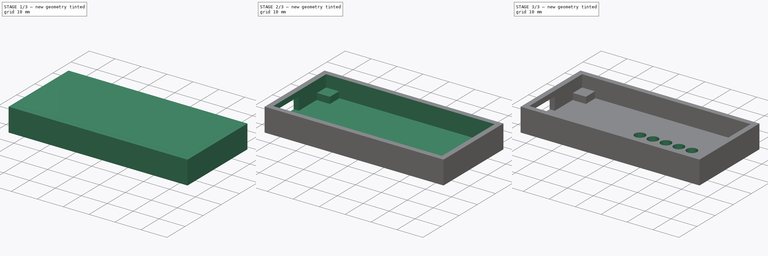
[diagram: build sequence overview — one tinted view per stage of 3, left to right]
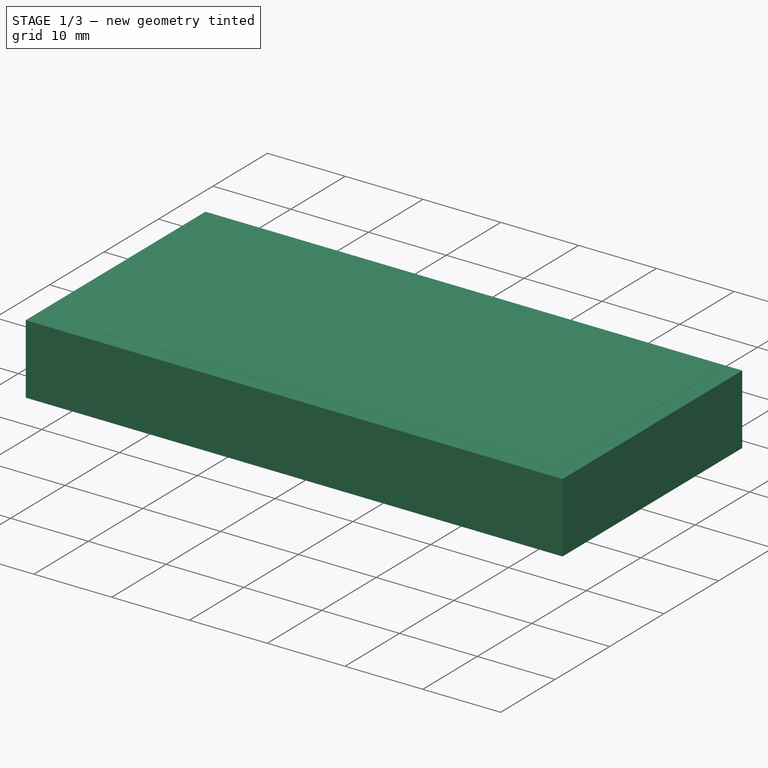
[diagram: stage 1 of 3 — iso view after this stage's code; geometry added in this stage tinted green]
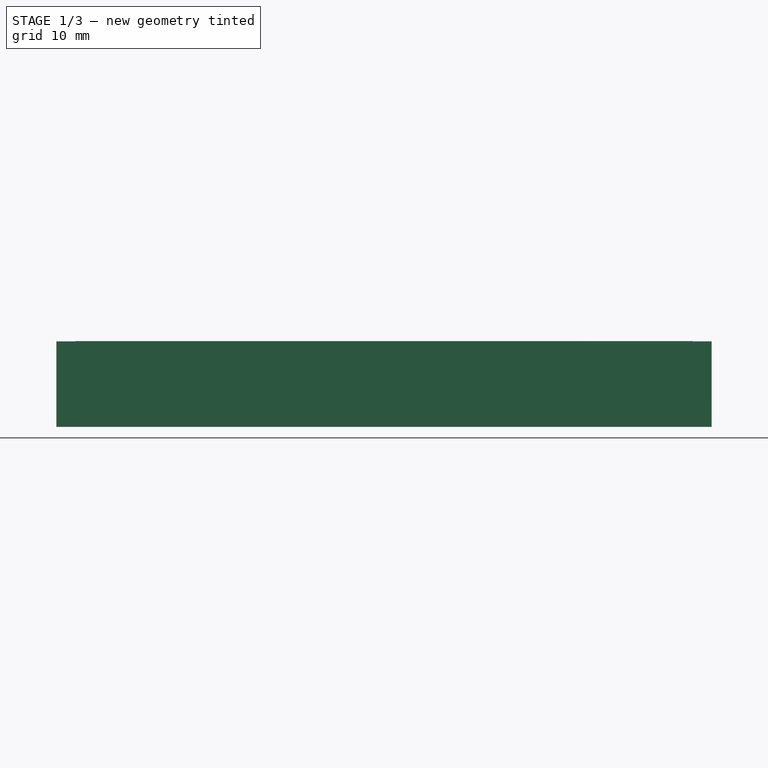
[diagram: stage 1 of 3 — front view after this stage's code; geometry added in this stage tinted green]
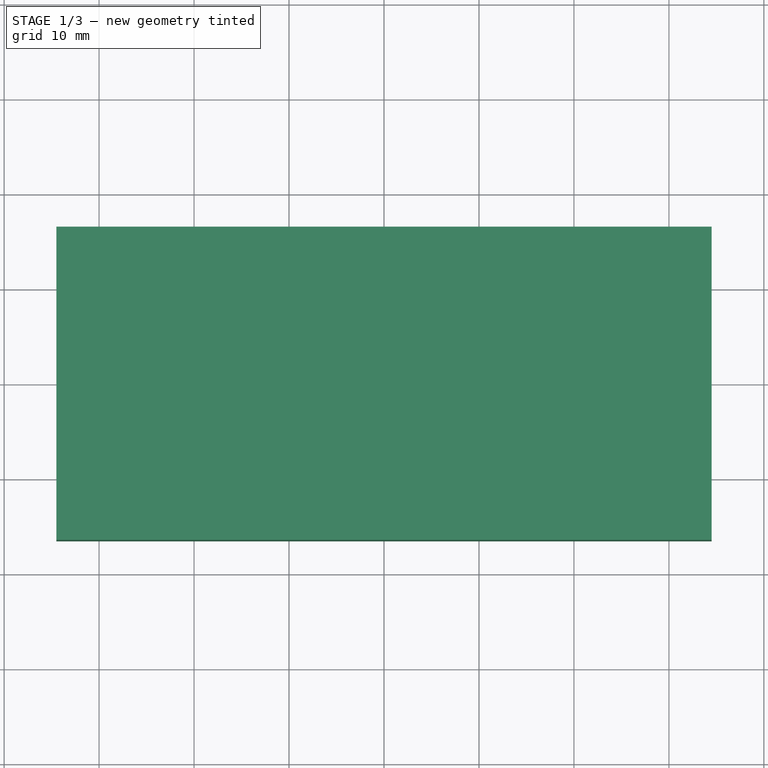
[diagram: stage 1 of 3 — top view after this stage's code; geometry added in this stage tinted green]
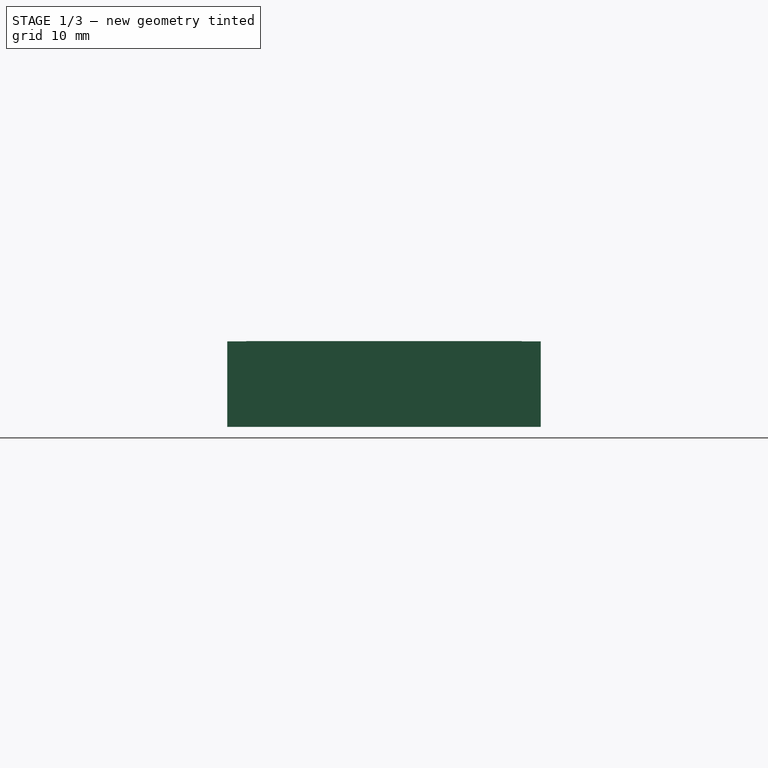
[diagram: stage 1 of 3 — right view after this stage's code; geometry added in this stage tinted green]
FCSTD DOCUMENT  (FreeCAD 0.19R24291 (Git))
Label: esp32-body
License: All rights reserved
LicenseURL: http://en.wikipedia.org/wiki/All_rights_reserved
objects: Sketcher::SketchObject×8, PartDesign::Pad×3, PartDesign::Pocket×3, PartDesign::LinearPattern×1, PartDesign::Body×1
note: 22 computed .brp shape members not serialized (recipe doc carries the construction recipe); baked Part::Feature solids carry a one-line shape summary decoded from their .brp

FEATURE [Sketcher::SketchObject] Sketch
  FullyConstrained = true
  MapMode = 5
  Support = -> [XY_Plane001]
  sketch-geometry (4):
    g0: LineSegment StartX=-32.5 StartY=14.5 StartZ=0 EndX=32.5 EndY=14.5 EndZ=0
    g1: LineSegment StartX=32.5 StartY=14.5 StartZ=0 EndX=32.5 EndY=-14.5 EndZ=0
    g2: LineSegment StartX=32.5 StartY=-14.5 StartZ=0 EndX=-32.5 EndY=-14.5 EndZ=0
    g3: LineSegment StartX=-32.5 StartY=-14.5 StartZ=0 EndX=-32.5 EndY=14.5 EndZ=0
  constraints (10):
    c: Coincident(g0,g1)
    c: Coincident(g1,g2)
    c: Coincident(g2,g3)
    c: Coincident(g3,g0)
    c: Horizontal(g2)
    c: Vertical(g1)
    c: Symmetric(g0,g0,g-2)
    c: Symmetric(g0,g2,g-1)
    c: Distance(g2) = 65
    c: Distance(g1) = 29
FEATURE [PartDesign::Pad] Pad  label="internal part"
  Direction = (1,1,1)
  Length = 0.02
  Length2 = 100
  Profile = -> Sketch
  Type = 0
FEATURE [Sketcher::SketchObject] Sketch001
  FullyConstrained = true
  MapMode = 5
  Placement = pos=(0,0,0.02) rot=(0,0,1;0rad)
  Support = -> [Pad]
FEATURE [Sketcher::SketchObject] Sketch002
  ExternalGeometry = -> [Pad]
  FullyConstrained = true
  MapMode = 5
  Placement = pos=(0,0,0) rot=(1,0,0;3.14159rad)
  Support = -> [Pad]
  sketch-geometry (4):
    g0: LineSegment StartX=-34.5 StartY=16.5 StartZ=0 EndX=34.5 EndY=16.5 EndZ=0
    g1: LineSegment StartX=34.5 StartY=16.5 StartZ=0 EndX=34.5 EndY=-16.5 EndZ=0
    g2: LineSegment StartX=34.5 StartY=-16.5 StartZ=0 EndX=-34.5 EndY=-16.5 EndZ=0
    g3: LineSegment StartX=-34.5 StartY=-16.5 StartZ=0 EndX=-34.5 EndY=16.5 EndZ=0
  constraints (10):
    c: Coincident(g0,g1)
    c: Coincident(g1,g2)
    c: Coincident(g2,g3)
    c: Coincident(g3,g0)
    c: Horizontal(g2)
    c: Vertical(g1)
    c: Symmetric(g0,g0,g-2)
    c: Symmetric(g0,g2,g-1)
    c: Distance(g-3,g3) = 2
    c: Distance(g-3,g0) = 2
FEATURE [PartDesign::Pad] Pad001  label="external part (walls)"
  BaseFeature = -> Pad
  Direction = (1,1,1)
  Length = 9
  Length2 = 100
  Profile = -> Sketch002
  Type = 0
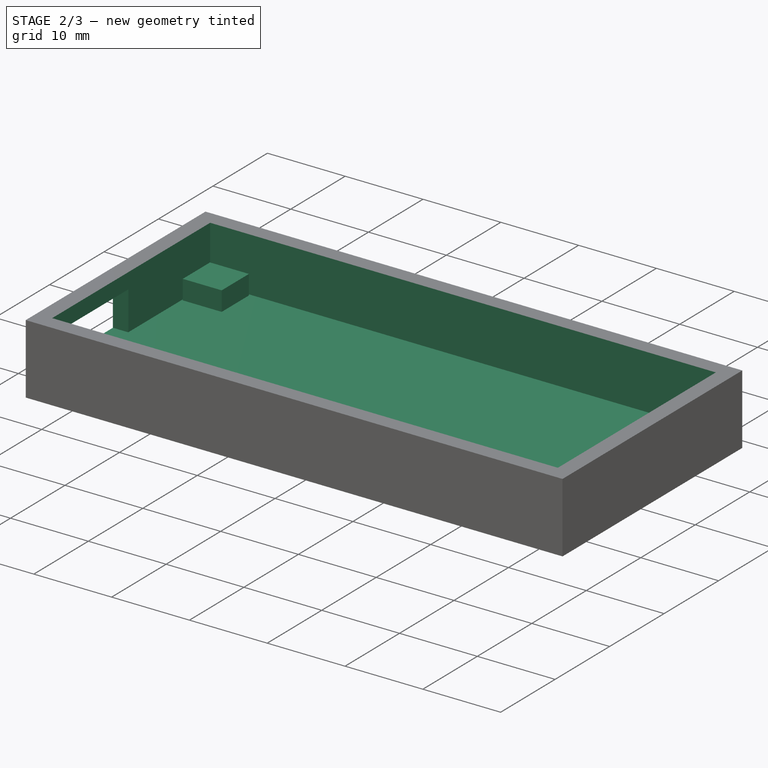
[diagram: stage 2 of 3 — iso view after this stage's code; geometry added in this stage tinted green]
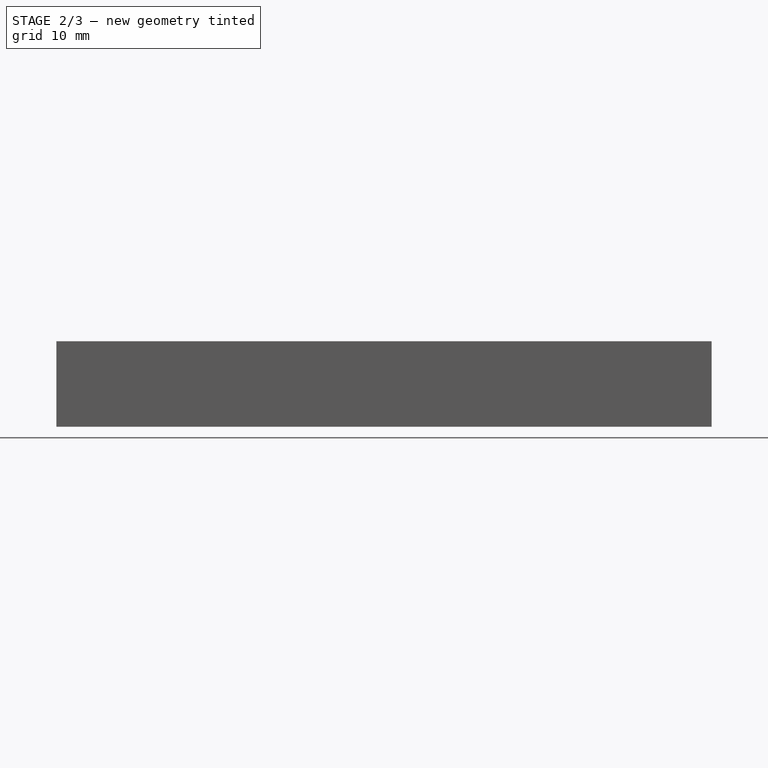
[diagram: stage 2 of 3 — front view after this stage's code; geometry added in this stage tinted green]
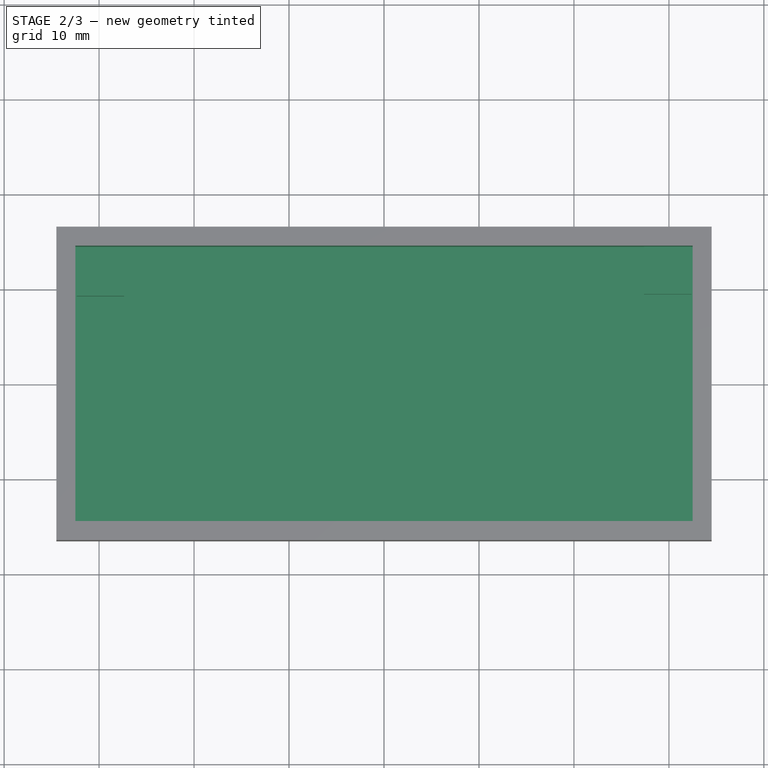
[diagram: stage 2 of 3 — top view after this stage's code; geometry added in this stage tinted green]
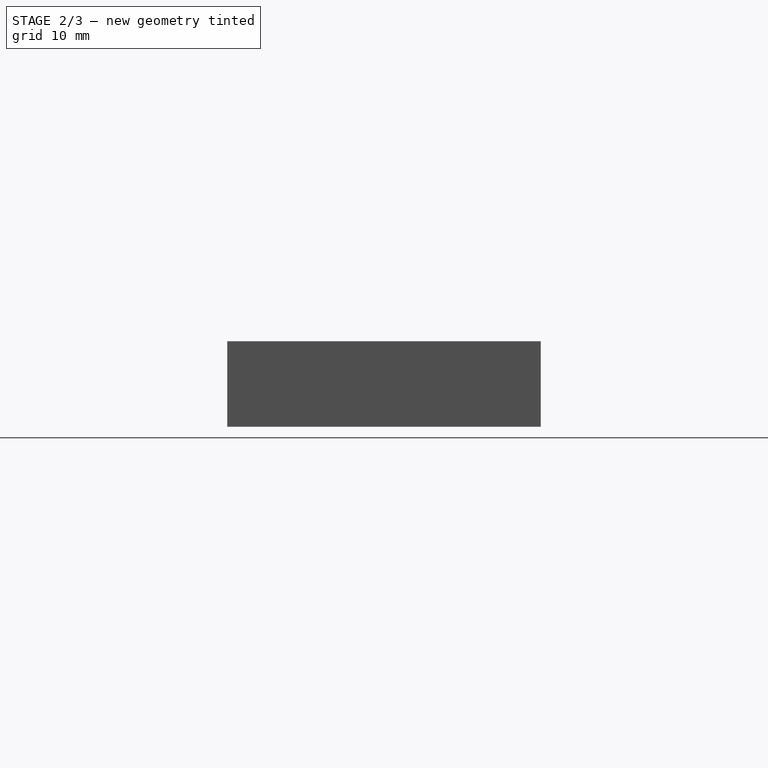
[diagram: stage 2 of 3 — right view after this stage's code; geometry added in this stage tinted green]
FEATURE [PartDesign::Pocket] Pocket
  BaseFeature = -> Pad001
  Length = 7
  Length2 = 100
  Profile = -> Pad001 [Face11]
  Type = 0
FEATURE [Sketcher::SketchObject] Sketch003
  ExternalGeometry = -> [Pocket]
  FullyConstrained = true
  MapMode = 5
  Placement = pos=(0,0,-6.98) rot=(0,0,1;0rad)
  Support = -> [Pocket]
  sketch-geometry (1):
    g0: LineSegment StartX=-33.5 StartY=-11.1 StartZ=0 EndX=-33.5 EndY=-2.1 EndZ=0
  constraints (4):
    c: Vertical(g0)
    c: Distance(g0) = 9
    c: DistanceY(g-3,g0) = 5.4
    c: DistanceX(g-3,g0) = 1
FEATURE [Sketcher::SketchObject] Sketch004
  FullyConstrained = true
  MapMode = 5
  Placement = pos=(-34.5,0,0) rot=(0.57735,-0.57735,-0.57735;2.0944rad)
  Support = -> [Pocket]
FEATURE [Sketcher::SketchObject] Sketch005
  ExternalGeometry = -> [Pocket]
  FullyConstrained = false
  MapMode = 5
  Placement = pos=(-34.5,0,0) rot=(0.57735,-0.57735,-0.57735;2.0944rad)
  Support = -> [Pocket]
  sketch-geometry (4):
    g0: LineSegment StartX=0.5 StartY=-1.99902 StartZ=0 EndX=12.5 EndY=-1.99902 EndZ=0
    g1: LineSegment StartX=12.5 StartY=-1.99902 StartZ=0 EndX=12.5 EndY=-7 EndZ=0
    g2: LineSegment StartX=12.5 StartY=-7 StartZ=0 EndX=0.5 EndY=-7 EndZ=0
    g3: LineSegment StartX=0.5 StartY=-7 StartZ=0 EndX=0.5 EndY=-1.99902 EndZ=0
  constraints (11):
    c: Coincident(g0,g1)
    c: Coincident(g1,g2)
    c: Coincident(g2,g3)
    c: Coincident(g3,g0)
    c: Horizontal(g0)
    c: Horizontal(g2)
    c: Vertical(g1)
    c: Vertical(g3)
    c: DistanceX(g1,g-3) = 4
    c: DistanceX(g2,g2) = 12
    c: DistanceY(g-3,g1) = 2
FEATURE [PartDesign::Pocket] Pocket001
  BaseFeature = -> Pocket
  Length = 2
  Length2 = 100
  Profile = -> Sketch005
  Type = 0
FEATURE [Sketcher::SketchObject] Sketch006
  ExternalGeometry = -> [Pocket001]
  FullyConstrained = false
  MapMode = 5
  Placement = pos=(0,0,-6.98) rot=(0,0,1;0rad)
  Support = -> [Pocket001]
  sketch-geometry (14):
    g0: LineSegment StartX=-32.3567 StartY=14.274 StartZ=0 EndX=-27.3567 EndY=14.274 EndZ=0
    g1: LineSegment StartX=-27.3567 StartY=14.274 StartZ=0 EndX=-27.3567 EndY=9.27401 EndZ=0
    g2: LineSegment StartX=-27.3567 StartY=9.27401 StartZ=0 EndX=-32.3567 EndY=9.27401 EndZ=0
    g3: LineSegment StartX=-32.3567 StartY=9.27401 StartZ=0 EndX=-32.3567 EndY=14.274 EndZ=0
    g4: LineSegment StartX=32.7981 StartY=-14.6778 StartZ=0 EndX=27.7981 EndY=-14.6778 EndZ=0
    g5: LineSegment StartX=27.7981 StartY=-14.6778 StartZ=0 EndX=27.7981 EndY=-9.67778 EndZ=0
    g6: LineSegment StartX=27.7981 StartY=-9.67778 StartZ=0 EndX=32.7981 EndY=-9.67778 EndZ=0
    g7: LineSegment StartX=32.7981 StartY=-9.67778 StartZ=0 EndX=32.7981 EndY=-14.6778 EndZ=0
    g8: LineSegment StartX=32.3813 StartY=14.4705 StartZ=0 EndX=27.3813 EndY=14.4705 EndZ=0
    g9: LineSegment StartX=27.3813 StartY=14.4705 StartZ=0 EndX=27.3813 EndY=9.47049 EndZ=0
    g10: LineSegment StartX=27.3813 StartY=9.47049 StartZ=0 EndX=32.3813 EndY=9.47049 EndZ=0
    g11: LineSegment StartX=32.3813 StartY=9.47049 StartZ=0 EndX=32.3813 EndY=14.4705 EndZ=0
    g12: LineSegment StartX=-32.5 StartY=-14.5 StartZ=0 EndX=-27.5 EndY=-14.5 EndZ=0
    g13: LineSegment StartX=-32.5 StartY=-9.48662 StartZ=0 EndX=-32.5 EndY=-14.5 EndZ=0
  constraints (32):
    c: Coincident(g0,g1)
    c: Coincident(g1,g2)
    c: Coincident(g2,g3)
    c: Coincident(g3,g0)
    c: Horizontal(g0)
    c: Horizontal(g2)
    c: Vertical(g1)
    c: Vertical(g3)
    c: Distance(g1) = 5
    c: Distance(g2) = 5
    c: Coincident(g4,g5)
    c: Coincident(g5,g6)
    c: Coincident(g6,g7)
    c: Coincident(g7,g4)
    c: Horizontal(g4)
    c: Horizontal(g6)
    c: Vertical(g5)
    c: Vertical(g7)
    c: Distance(g6) = 5
    c: Distance(g5) = 5
    c: Coincident(g8,g9)
    c: Coincident(g9,g10)
    c: Coincident(g10,g11)
    c: Coincident(g11,g8)
    c: Horizontal(g8)
    c: Horizontal(g10)
    c: Vertical(g9)
    c: Vertical(g11)
    c: Distance(g10) = 5
    c: Distance(g9) = 5
    c: Coincident(g13,g12)
    c: Coincident(g12,g-3)
FEATURE [PartDesign::Pad] Pad002
  BaseFeature = -> Pocket001
  Direction = (1,1,1)
  Length = 2.5
  Length2 = 100
  Profile = -> Sketch006
  Type = 0
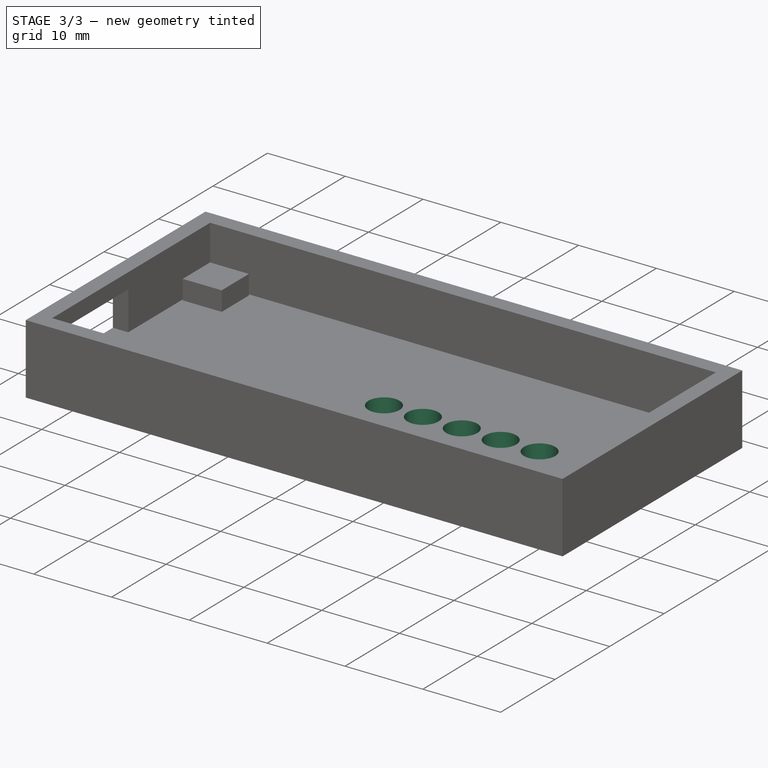
[diagram: stage 3 of 3 — iso view after this stage's code; geometry added in this stage tinted green]
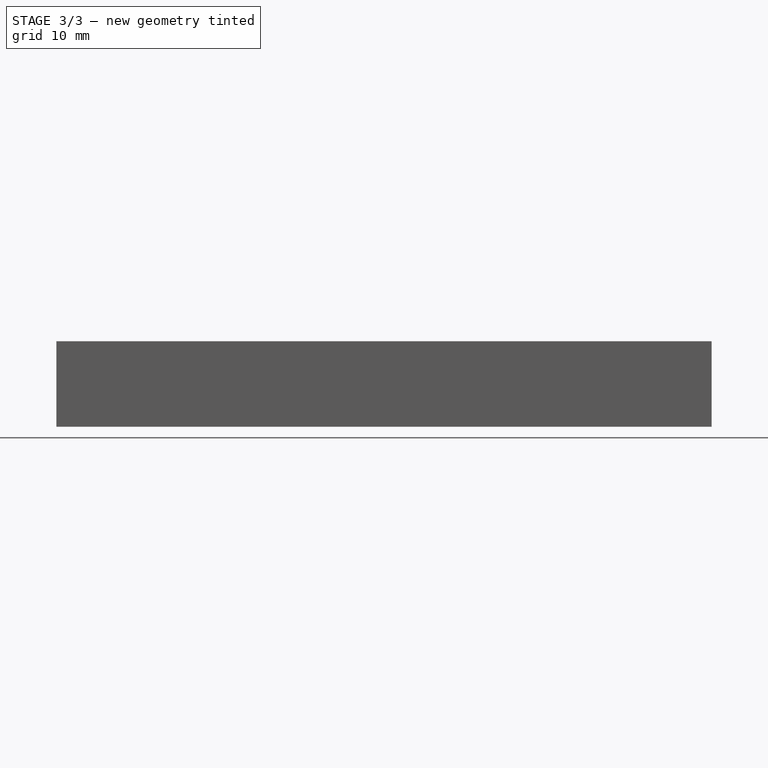
[diagram: stage 3 of 3 — front view after this stage's code; geometry added in this stage tinted green]
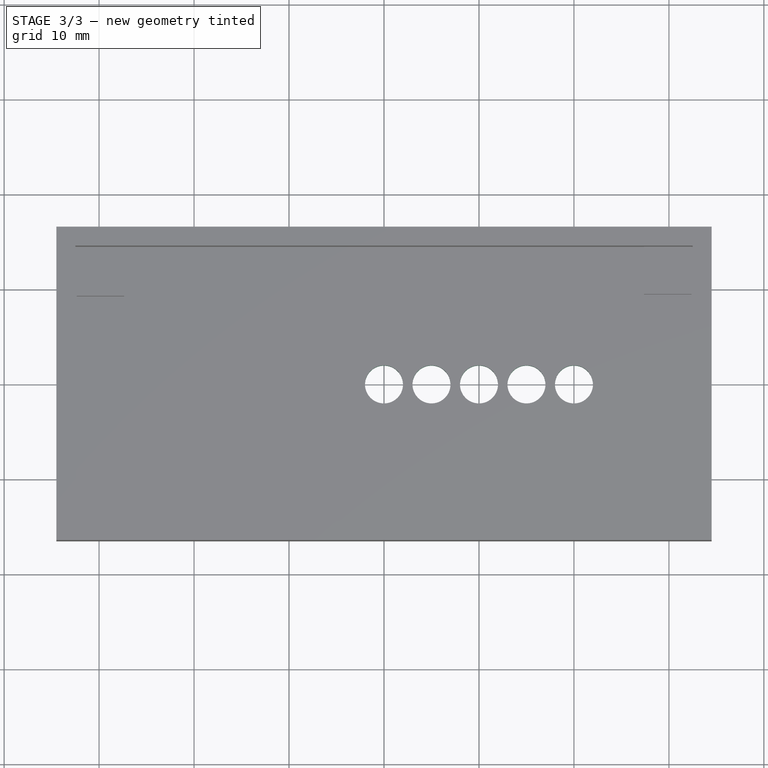
[diagram: stage 3 of 3 — top view after this stage's code; geometry added in this stage tinted green]
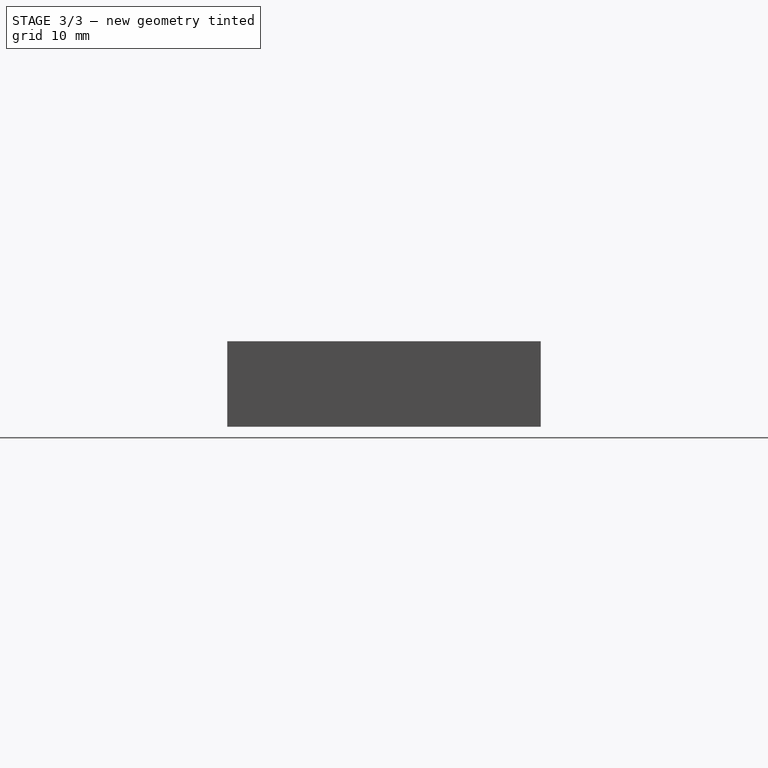
[diagram: stage 3 of 3 — right view after this stage's code; geometry added in this stage tinted green]
FEATURE [Sketcher::SketchObject] Sketch007
  FullyConstrained = true
  MapMode = 5
  Placement = pos=(27.7981,0,0) rot=(0.57735,-0.57735,-0.57735;2.0944rad)
  Support = -> [Pad002]
  sketch-geometry (1):
    g0: Circle CenterX=0 CenterY=0 CenterZ=0 NormalX=0 NormalY=0 NormalZ=1 AngleXU=0 Radius=2
  constraints (2):
    c: Coincident(g0,g-1)
    c: Radius(g0) = 2
FEATURE [PartDesign::Pocket] Pocket002
  BaseFeature = -> Pad002
  Length = 5
  Length2 = 100
  Profile = -> Sketch007
  Type = 0
FEATURE [PartDesign::LinearPattern] LinearPattern
  BaseFeature = -> Pocket002
  Direction = -> Sketch007 [H_Axis]
  Length = 20
  Occurrences = 5
  Originals = -> [Pocket002]
FEATURE [PartDesign::Body] Body001  label="body"
  Group = -> [Sketch,Pad,Sketch001,Sketch002,Pad001,Pocket,Sketch003,Sketch004,Sketch005,Pocket001,Sketch006,Pad002,Sketch007,Pocket002,LinearPattern]
  Origin = -> Origin001
  Tip = -> LinearPattern
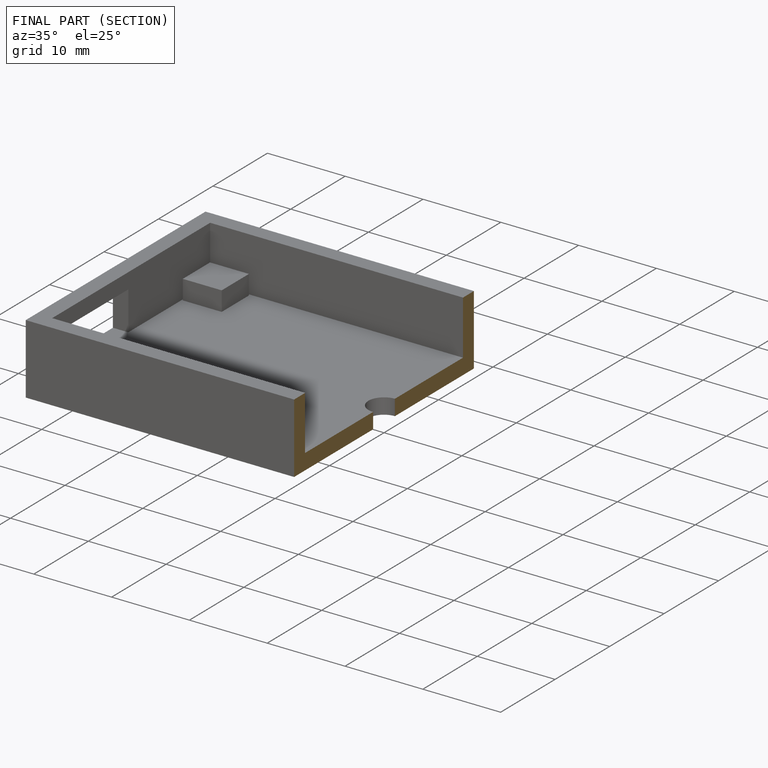
[diagram: finished part — half-section view (interior)]
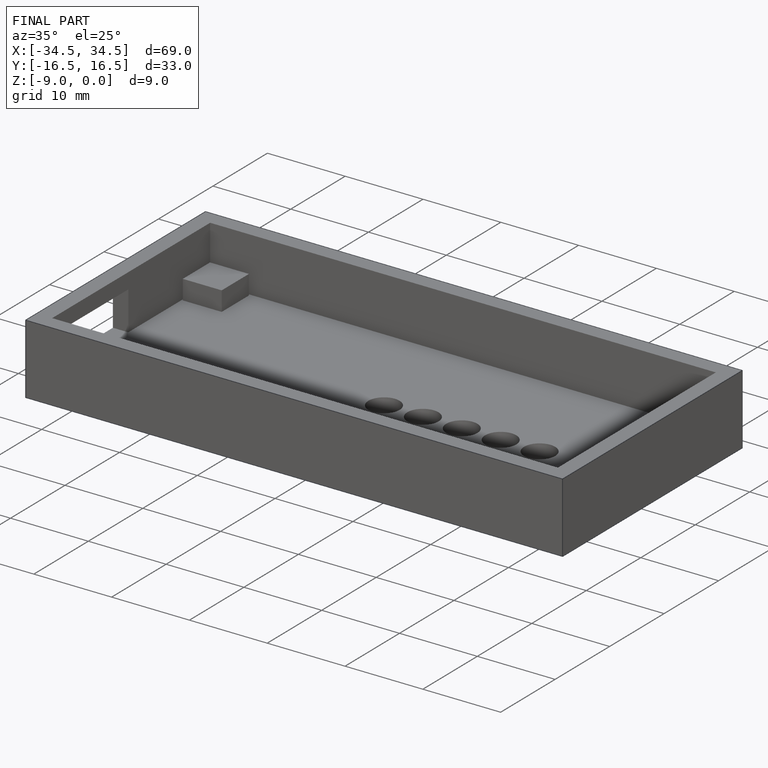
[diagram: finished part — iso view with bounding-box wireframe]
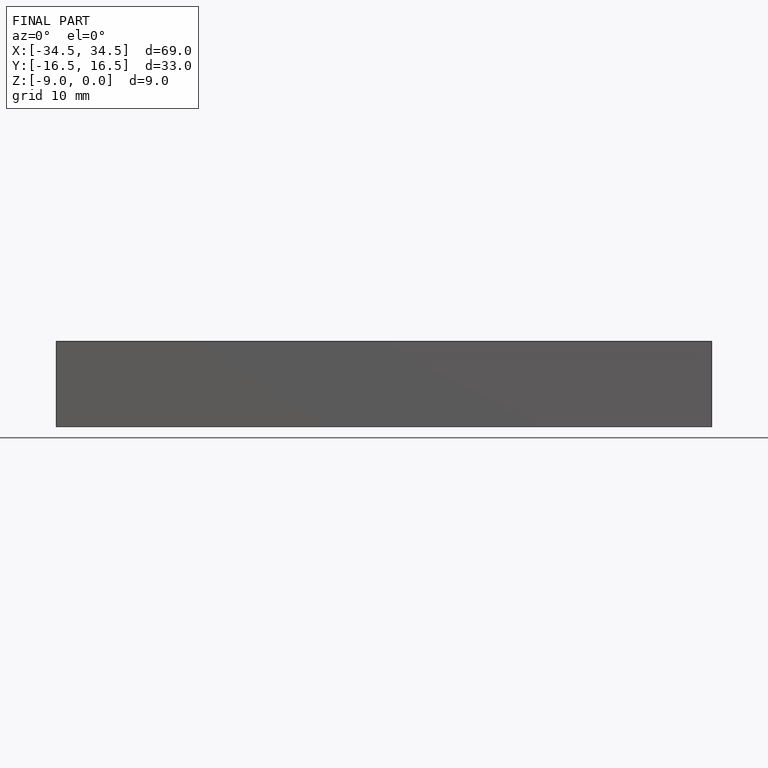
[diagram: finished part — front view with bounding-box wireframe]
